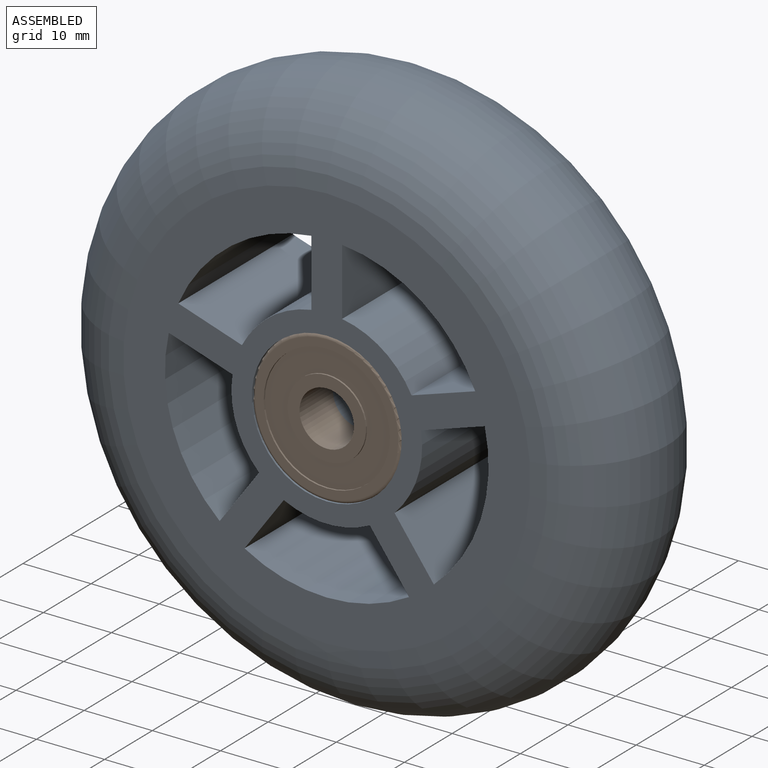
[diagram: assembled view]
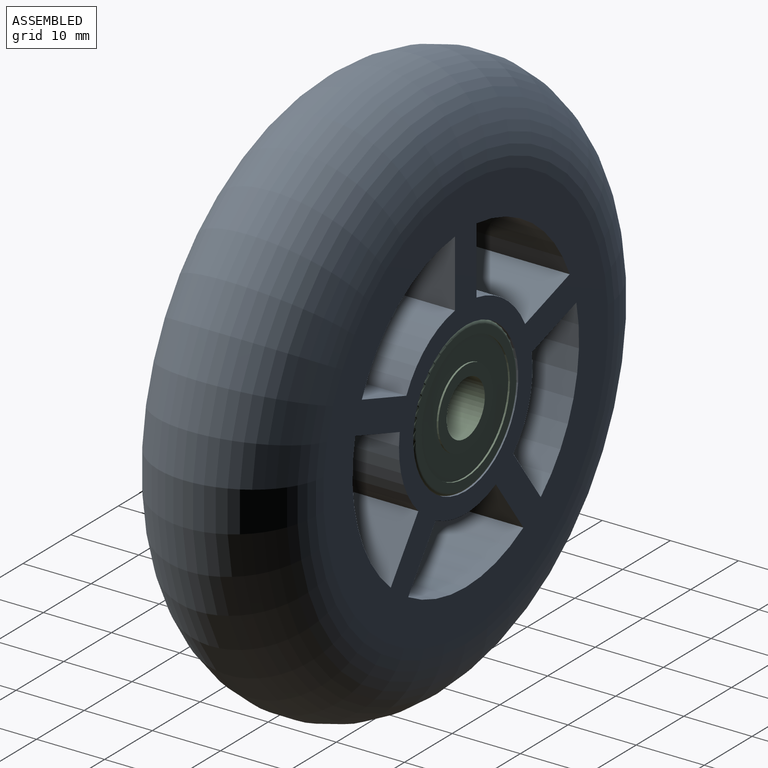
[diagram: assembled view, second angle]
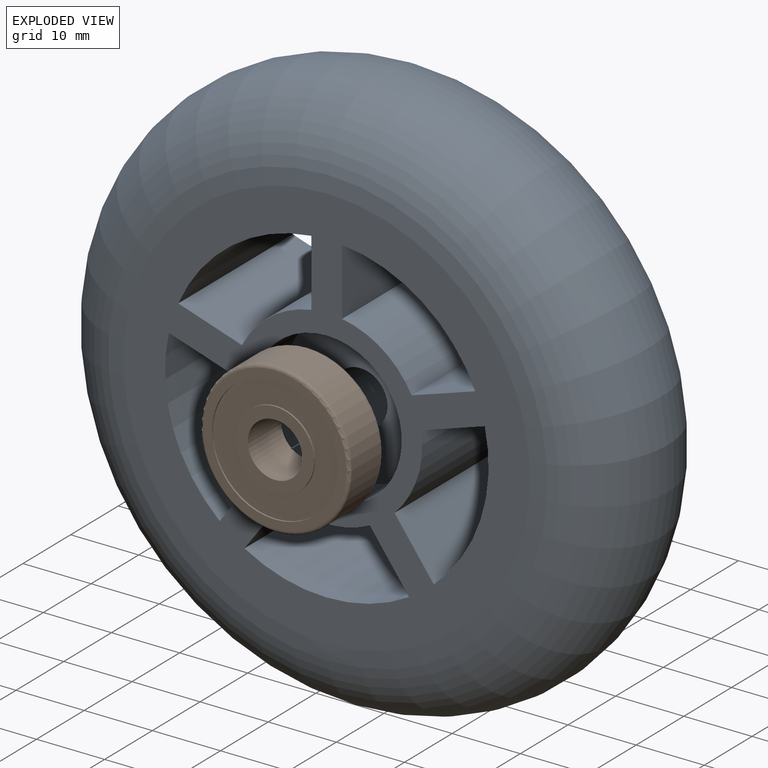
[diagram: exploded view]
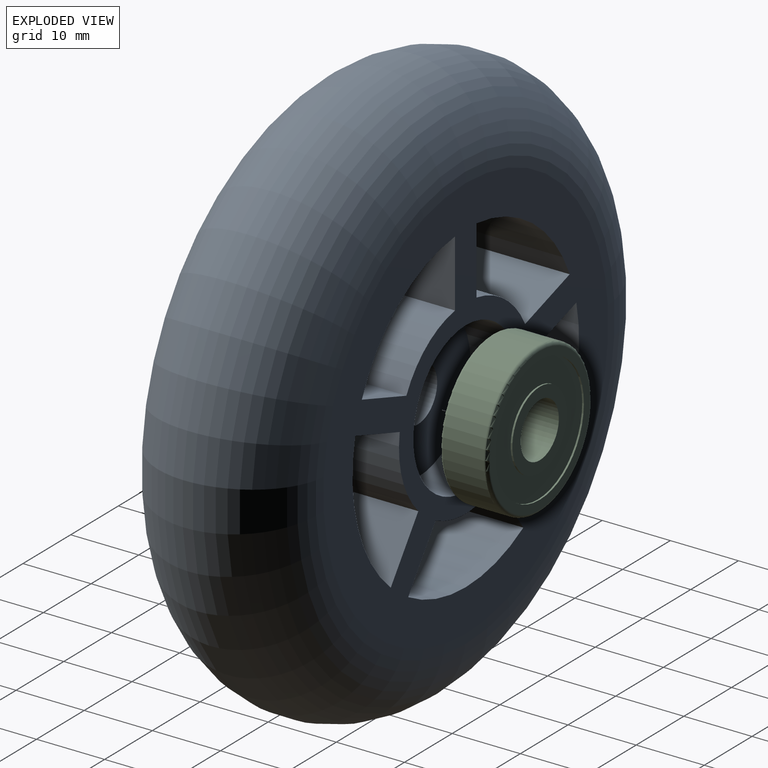
[diagram: exploded view, second angle]
ASSEMBLY  parts=3 mates=2
PART A: 28 faces, bbox 90.7x24x90.7 mm
  f0: cylinder r=11mm len=22mm, axis (0,1,0), area 483.8mm2, adj f23,f26
  f1: plane 24x9.83mm, normal (1,0,0), area 235.8mm2, adj f2,f16,f22,f23
  f2: cylinder r=23.75mm len=24mm, axis (0,1,0), area 608.1mm2, adj f1,f3,f22,f23
  f3: plane 24x9.34mm, normal (-0.31,0,0.95), area 235.8mm2, adj f2,f16,f22,f23
  f4: cylinder r=23.75mm len=24mm, axis (0,1,0), area 608.1mm2, adj f5,f17,f22,f23
  f5: plane 24x9.83mm, normal (-1,0,0), area 235.8mm2, adj f4,f6,f22,f23
  f6: cylinder r=14mm len=24mm, axis (0,1,0), area 313.8mm2, adj f5,f17,f22,f23
  f7: cylinder r=23.75mm len=24mm, axis (0,1,0), area 608.1mm2, adj f8,f18,f22,f23
  f8: plane 24x9.34mm, normal (-0.31,0,-0.95), area 235.8mm2, adj f7,f9,f22,f23
  f9: cylinder r=14mm len=24mm, axis (0,1,0), area 313.8mm2, adj f8,f18,f22,f23
  f10: cylinder r=23.75mm len=24.15mm, axis (0,1,0), area 608.1mm2, adj f11,f19,f22,f23
  f11: plane 24x7.95mm, normal (0.81,0,-0.59), area 235.8mm2, adj f10,f12,f22,f23
  f12: cylinder r=14mm len=24mm, axis (0,1,0), area 313.8mm2, adj f11,f19,f22,f23
  f13: cylinder r=23.75mm len=24mm, axis (0,1,0), area 608.1mm2, adj f14,f20,f22,f23
  f14: plane 24x7.95mm, normal (0.81,0,0.59), area 235.8mm2, adj f13,f15,f22,f23
  f15: cylinder r=14mm len=24mm, axis (0,1,0), area 313.8mm2, adj f14,f20,f22,f23
  f16: cylinder r=14mm len=24mm, axis (0,1,0), area 313.8mm2, adj f1,f3,f22,f23
  f17: plane 24x9.34mm, normal (0.31,0,0.95), area 235.8mm2, adj f4,f6,f22,f23
  f18: plane 24x7.95mm, normal (-0.81,0,0.59), area 235.8mm2, adj f7,f9,f22,f23
  f19: plane 24x7.95mm, normal (-0.81,0,-0.59), area 235.8mm2, adj f10,f12,f22,f23
  f20: plane 24x9.34mm, normal (0.31,0,-0.95), area 235.8mm2, adj f13,f15,f22,f23
  f21: cylinder r=11mm len=22mm, axis (0,1,0), area 483.8mm2, adj f22,f25
  f22: plane 59.75x59.75mm, normal (0,-1,0), area 1487.4mm2, adj f1,f2,f3,f4,f5,f6,f7,f8
  f23: plane 59.75x59.75mm, normal (0,1,0), area 1487.4mm2, adj f0,f1,f2,f3,f4,f5,f6,f7
  f24: cylinder r=4mm len=10mm, axis (0,1,0), area 251.3mm2, adj f25,f26
  f25: plane 22x22mm, normal (0,-1,0), area 329.9mm2, adj f21,f24
  f26: plane 22x22mm, normal (0,1,0), area 329.9mm2, adj f0,f24
  f27: torus R=29.88mm, axis (0,-1,0), area 8886.1mm2, adj f22,f23
PART B: 14 faces, bbox 23.8x7x23.8 mm
  f0: cylinder r=9.25mm len=18.5mm, axis (0,1,0), area 14.5mm2, adj f4,f11
  f1: cylinder r=9.25mm len=18.5mm, axis (0,1,0), area 14.5mm2, adj f3,f10
  f2: cylinder r=11mm len=22mm, axis (0,1,0), area 414.7mm2, adj f12,f13
  f3: plane 21x21mm, normal (0,-1,0), area 77.6mm2, adj f1,f13
  f4: plane 21x21mm, normal (0,1,0), area 77.6mm2, adj f0,f12
  f5: cylinder r=5.75mm len=11.5mm, axis (0,1,0), area 9mm2, adj f9,f11
  f6: cylinder r=4mm len=8mm, axis (0,1,0), area 175.9mm2, adj f8,f9
  f7: cylinder r=5.75mm len=11.5mm, axis (0,1,0), area 9mm2, adj f8,f10
  f8: plane 11.5x11.5mm, normal (0,-1,0), area 53.6mm2, adj f6,f7
  f9: plane 11.5x11.5mm, normal (0,1,0), area 53.6mm2, adj f5,f6
  f10: plane 18.5x18.5mm, normal (0,-1,0), area 164.9mm2, adj f1,f7
  f11: plane 18.5x18.5mm, normal (0,1,0), area 164.9mm2, adj f0,f5
  f12: torus R=10.5mm, axis (0,-1,0), area 53.4mm2, adj f2,f4
  f13: torus R=10.5mm, axis (0,-1,0), area 53.4mm2, adj f2,f3
PART C: same geometry as B
PLACE A at identity fixed
PLACE B rot(axis=(1,0,0),180deg) t=(0,-8.5,0)mm
PLACE C rot(axis=(1,0,0),180deg) t=(0,8.5,0)mm
MATE fastened C.f5 <-> A.f24  axis (0,-1,0) through (0,5,0)mm
MATE fastened B.f6 <-> A.f0  axis (0,1,0) through (0,-5,0)mm
